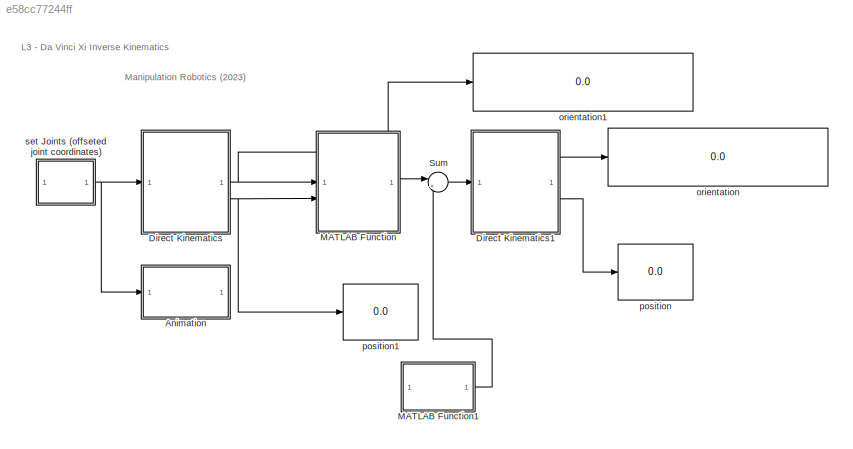
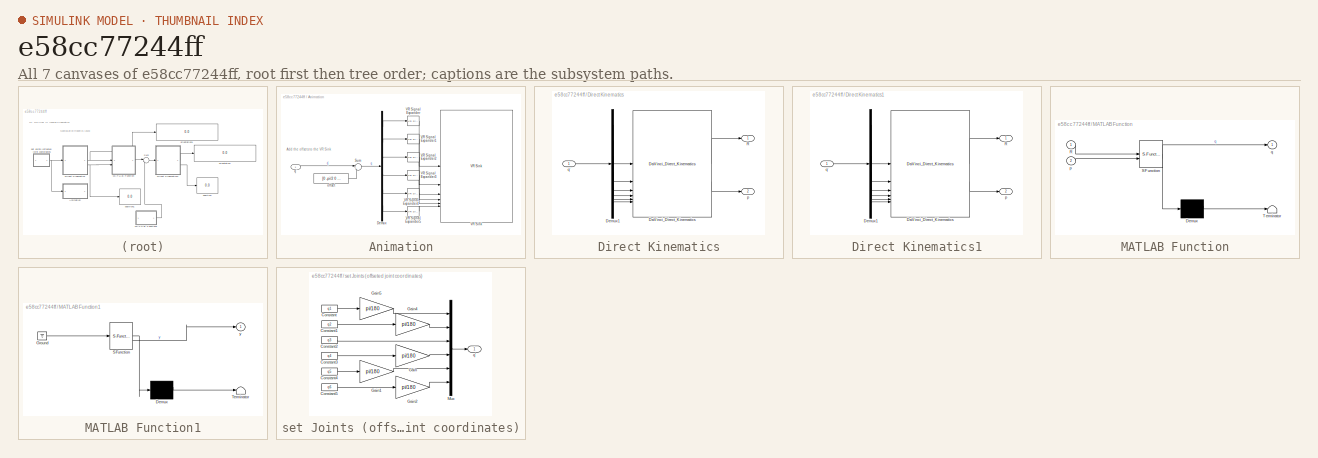
[diagram: thumbnail index - all 7 canvases of the model, root first then tree order]
MODEL slx_e58cc77244ff
KIND model
CONFIG AbsTol = auto
CONFIG EnableMultiTasking = on
CONFIG FixedStep = auto
CONFIG MaxStep = auto
CONFIG MinStep = auto
CONFIG RelTol = 1e-3
CONFIG SampleTimeConstraint = Unconstrained
CONFIG SolverName = VariableStepAuto
CONFIG StartTime = 0.0
CONFIG StopTime = inf
BLOCK [SubSystem] Animation
  Commented = on
BLOCK [Demux] Animation/Demux
  Outputs = 6
BLOCK [Sum] Animation/Sum
  Inputs = |++
BLOCK [Reference] Animation/VR Signal Expander  REF=vrlib/VR Signal Expander
  SourceBlock = vrlib/VR Signal Expander
  SourceType = VR Signal Expander
BLOCK [Reference] Animation/VR Signal Expander1  REF=vrlib/VR Signal Expander
  SourceBlock = vrlib/VR Signal Expander
  SourceType = VR Signal Expander
BLOCK [Reference] Animation/VR Signal Expander2  REF=vrlib/VR Signal Expander
  SourceBlock = vrlib/VR Signal Expander
  SourceType = VR Signal Expander
BLOCK [Reference] Animation/VR Signal Expander3  REF=vrlib/VR Signal Expander
  SourceBlock = vrlib/VR Signal Expander
  SourceType = VR Signal Expander
BLOCK [Reference] Animation/VR Signal Expander4  REF=vrlib/VR Signal Expander
  SourceBlock = vrlib/VR Signal Expander
  SourceType = VR Signal Expander
BLOCK [Reference] Animation/VR Signal Expander5  REF=vrlib/VR Signal Expander
  SourceBlock = vrlib/VR Signal Expander
  SourceType = VR Signal Expander
BLOCK [Reference] Animation/VR Sink  REF=vrlib/VR Sink
  InstantiateOnLoad = on
  SourceBlock = vrlib/VR Sink
  SourceType = Virtual Reality Sink
BLOCK [Constant] Animation/offset
  Value = [0 -pi/2 0 pi/2 -pi/2 0]'
  VectorParams1D = off
BLOCK [Inport] Animation/q'
BLOCK [SubSystem] Direct Kinematics
BLOCK [Reference] Direct Kinematics/DaVinci_Direct_Kinematics  REF=DaVinci_Lib/DaVinci_Direct_Kinematics
  SourceBlock = DaVinci_Lib/DaVinci_Direct_Kinematics
  SourceType = SubSystem
BLOCK [Demux] Direct Kinematics/Demux1
  Outputs = 6
BLOCK [Outport] Direct Kinematics/R
BLOCK [Outport] Direct Kinematics/p
  Port = 2
BLOCK [Inport] Direct Kinematics/q'
BLOCK [SubSystem] Direct Kinematics1
BLOCK [Reference] Direct Kinematics1/DaVinci_Direct_Kinematics  REF=DaVinci_Lib/DaVinci_Direct_Kinematics
  SourceBlock = DaVinci_Lib/DaVinci_Direct_Kinematics
  SourceType = SubSystem
BLOCK [Demux] Direct Kinematics1/Demux1
  Outputs = 6
BLOCK [Outport] Direct Kinematics1/R
BLOCK [Outport] Direct Kinematics1/p
  Port = 2
BLOCK [Inport] Direct Kinematics1/q'
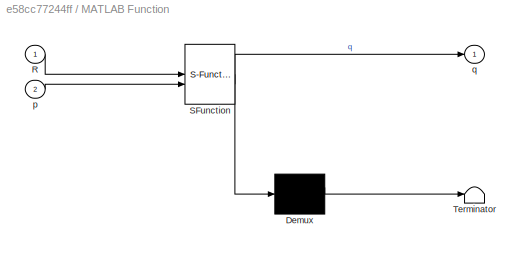
BLOCK [SubSystem] MATLAB Function
  ErrorFcn = Stateflow.Translate.translate
  LibrarySourceBlock = simulink/User-Defined\nFunctions/MATLAB Function
  PermitHierarchicalResolution = ExplicitOnly
  SFBlockType = MATLAB Function
  TreatAsAtomicUnit = on
BLOCK [Demux] MATLAB Function/ Demux 
  Outputs = 1
BLOCK [S-Function] MATLAB Function/ SFunction 
  EnableBusSupport = on
  FunctionName = sf_sfun
  PortCounts = [2 2]
  SFcnIsStateOwnerBlock = off
  SFunctionDeploymentMode = off
  Tag = Stateflow S-Function 2
BLOCK [Terminator] MATLAB Function/ Terminator 
BLOCK [Inport] MATLAB Function/R
BLOCK [Inport] MATLAB Function/p
  Port = 2
BLOCK [Outport] MATLAB Function/q
BLOCK [SubSystem] MATLAB Function1
  ErrorFcn = Stateflow.Translate.translate
  PermitHierarchicalResolution = ExplicitOnly
  SFBlockType = MATLAB Function
  TreatAsAtomicUnit = on
BLOCK [Demux] MATLAB Function1/ Demux 
  Outputs = 1
BLOCK [Ground] MATLAB Function1/ Ground 
BLOCK [S-Function] MATLAB Function1/ SFunction 
  EnableBusSupport = on
  FunctionName = sf_sfun
  PortCounts = [1 2]
  SFcnIsStateOwnerBlock = off
  SFunctionDeploymentMode = off
  Tag = Stateflow S-Function 1
BLOCK [Terminator] MATLAB Function1/ Terminator 
BLOCK [Outport] MATLAB Function1/y
BLOCK [Sum] Sum
  Inputs = |+-
BLOCK [Display] orientation
  Decimation = 1
BLOCK [Display] orientation1
  Decimation = 1
BLOCK [Display] position
  Decimation = 1
BLOCK [Display] position1
  Decimation = 1
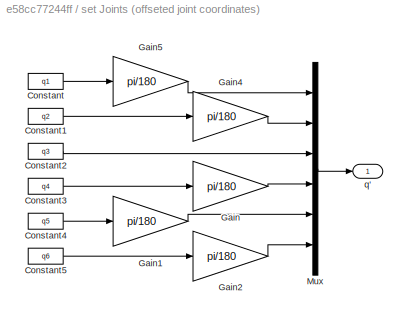
BLOCK [SubSystem] set Joints (offseted joint coordinates)
BLOCK [Constant] set Joints (offseted joint coordinates)/Constant
  Value = q1
BLOCK [Constant] set Joints (offseted joint coordinates)/Constant1
  Value = q2
BLOCK [Constant] set Joints (offseted joint coordinates)/Constant2
  Value = q3
BLOCK [Constant] set Joints (offseted joint coordinates)/Constant3
  Value = q4
BLOCK [Constant] set Joints (offseted joint coordinates)/Constant4
  Value = q5
BLOCK [Constant] set Joints (offseted joint coordinates)/Constant5
  Value = q6
BLOCK [Gain] set Joints (offseted joint coordinates)/Gain
  Gain = pi/180
BLOCK [Gain] set Joints (offseted joint coordinates)/Gain1
  Gain = pi/180
BLOCK [Gain] set Joints (offseted joint coordinates)/Gain2
  Gain = pi/180
BLOCK [Gain] set Joints (offseted joint coordinates)/Gain4
  Gain = pi/180
BLOCK [Gain] set Joints (offseted joint coordinates)/Gain5
  Gain = pi/180
BLOCK [Mux] set Joints (offseted joint coordinates)/Mux
  DisplayOption = bar
  Inputs = 6
BLOCK [Outport] set Joints (offseted joint coordinates)/q'
ANNOTATION (root): L3 - Da Vinci Xi Inverse Kinematics
ANNOTATION (root): Manipulation Robotics (2023)
ANNOTATION Animation: Add the offsets to the VR Sink
LINE Animation/Demux:1 -> Animation/VR Signal Expander:1
LINE Animation/Demux:2 -> Animation/VR Signal Expander1:1
LINE Animation/Demux:3 -> Animation/VR Signal Expander2:1
LINE Animation/Demux:4 -> Animation/VR Signal Expander3:1
LINE Animation/Demux:5 -> Animation/VR Signal Expander4:1
LINE Animation/Demux:6 -> Animation/VR Signal Expander5:1
LINE Animation/Sum:1 -> Animation/Demux:1
LINE Animation/VR Signal Expander1:1 -> Animation/VR Sink:2
LINE Animation/VR Signal Expander2:1 -> Animation/VR Sink:3
LINE Animation/VR Signal Expander3:1 -> Animation/VR Sink:4
LINE Animation/VR Signal Expander4:1 -> Animation/VR Sink:5
LINE Animation/VR Signal Expander5:1 -> Animation/VR Sink:6
LINE Animation/VR Signal Expander:1 -> Animation/VR Sink:1
LINE Animation/offset:1 -> Animation/Sum:2
LINE Animation/q':1 -> Animation/Sum:1
LINE Direct Kinematics/DaVinci_Direct_Kinematics:1 -> Direct Kinematics/R:1
LINE Direct Kinematics/DaVinci_Direct_Kinematics:2 -> Direct Kinematics/p:1
LINE Direct Kinematics/Demux1:1 -> Direct Kinematics/DaVinci_Direct_Kinematics:1
LINE Direct Kinematics/Demux1:2 -> Direct Kinematics/DaVinci_Direct_Kinematics:2
LINE Direct Kinematics/Demux1:3 -> Direct Kinematics/DaVinci_Direct_Kinematics:3
LINE Direct Kinematics/Demux1:4 -> Direct Kinematics/DaVinci_Direct_Kinematics:4
LINE Direct Kinematics/Demux1:5 -> Direct Kinematics/DaVinci_Direct_Kinematics:5
LINE Direct Kinematics/Demux1:6 -> Direct Kinematics/DaVinci_Direct_Kinematics:6
LINE Direct Kinematics/q':1 -> Direct Kinematics/Demux1:1
LINE Direct Kinematics1/DaVinci_Direct_Kinematics:1 -> Direct Kinematics1/R:1
LINE Direct Kinematics1/DaVinci_Direct_Kinematics:2 -> Direct Kinematics1/p:1
LINE Direct Kinematics1/Demux1:1 -> Direct Kinematics1/DaVinci_Direct_Kinematics:1
LINE Direct Kinematics1/Demux1:2 -> Direct Kinematics1/DaVinci_Direct_Kinematics:2
LINE Direct Kinematics1/Demux1:3 -> Direct Kinematics1/DaVinci_Direct_Kinematics:3
LINE Direct Kinematics1/Demux1:4 -> Direct Kinematics1/DaVinci_Direct_Kinematics:4
LINE Direct Kinematics1/Demux1:5 -> Direct Kinematics1/DaVinci_Direct_Kinematics:5
LINE Direct Kinematics1/Demux1:6 -> Direct Kinematics1/DaVinci_Direct_Kinematics:6
LINE Direct Kinematics1/q':1 -> Direct Kinematics1/Demux1:1
LINE Direct Kinematics1:1 -> orientation:1
LINE Direct Kinematics1:2 -> position:1
NET Direct Kinematics:1 -> MATLAB Function:1, orientation1:1
NET Direct Kinematics:2 -> MATLAB Function:2, position1:1
LINE MATLAB Function1:1 -> Sum:2
LINE MATLAB Function:1 -> Sum:1
LINE Sum:1 -> Direct Kinematics1:1
LINE set Joints (offseted joint coordinates)/Constant1:1 -> set Joints (offseted joint coordinates)/Gain4:1
LINE set Joints (offseted joint coordinates)/Constant2:1 -> set Joints (offseted joint coordinates)/Mux:3
LINE set Joints (offseted joint coordinates)/Constant3:1 -> set Joints (offseted joint coordinates)/Gain:1
LINE set Joints (offseted joint coordinates)/Constant4:1 -> set Joints (offseted joint coordinates)/Gain1:1
LINE set Joints (offseted joint coordinates)/Constant5:1 -> set Joints (offseted joint coordinates)/Gain2:1
LINE set Joints (offseted joint coordinates)/Constant:1 -> set Joints (offseted joint coordinates)/Gain5:1
LINE set Joints (offseted joint coordinates)/Gain1:1 -> set Joints (offseted joint coordinates)/Mux:5
LINE set Joints (offseted joint coordinates)/Gain2:1 -> set Joints (offseted joint coordinates)/Mux:6
LINE set Joints (offseted joint coordinates)/Gain4:1 -> set Joints (offseted joint coordinates)/Mux:2
LINE set Joints (offseted joint coordinates)/Gain5:1 -> set Joints (offseted joint coordinates)/Mux:1
LINE set Joints (offseted joint coordinates)/Gain:1 -> set Joints (offseted joint coordinates)/Mux:4
LINE set Joints (offseted joint coordinates)/Mux:1 -> set Joints (offseted joint coordinates)/q':1
NET set Joints (offseted joint coordinates):1 -> Animation:1, Direct Kinematics:1
note: NET lines group one-source signal fan-out (src -> all destinations, sorted); 1:1 wires keep LINE
CHART MATLAB Function states=1 transitions=1
  STATE_LABEL 'eML_blk_kernel()'
  STATE_LABEL "SCRIPT:\nfunction q  = daVinciIK(R, p)\n% IKin Calculations for DaVinci Robot\n% q = [qx qy qz]\n\nii = [1 ; 0 ; 0];\njj = [0 ; 1 ; 0];\nkk = [0 ; 0 ; 1];\na5 = .010;\na6 = .020;\n\nx6 = R * ii;\ny6 = R * jj;\nz6 = R * kk;\np5 = p - a6 * x6;\nz5 = z6;\n\nz4 = cross(p5, z5) / norm(cross(p5, z5));\nx5 = cross(z5, z4);\np3 = p5 - a5 * x5;\n\ntheta1 = atan2(-jj.' * p3, -ii.' * p3);\nR1 = [cos(theta1) 0 -sin(theta1) ; sin(t...<+590ch>"
CHART MATLAB Function1 states=1 transitions=1
  STATE_LABEL 'eML_blk_kernel()'
  STATE_LABEL 'SCRIPT:\nfunction y = fnc\n%#codegen\n\n\ny = [0 ; -pi/2 ; 0 ; pi/2 ; -pi/2 ; 0];\n\nend'
CHART  states=0 transitions=0
CHART  states=0 transitions=0
